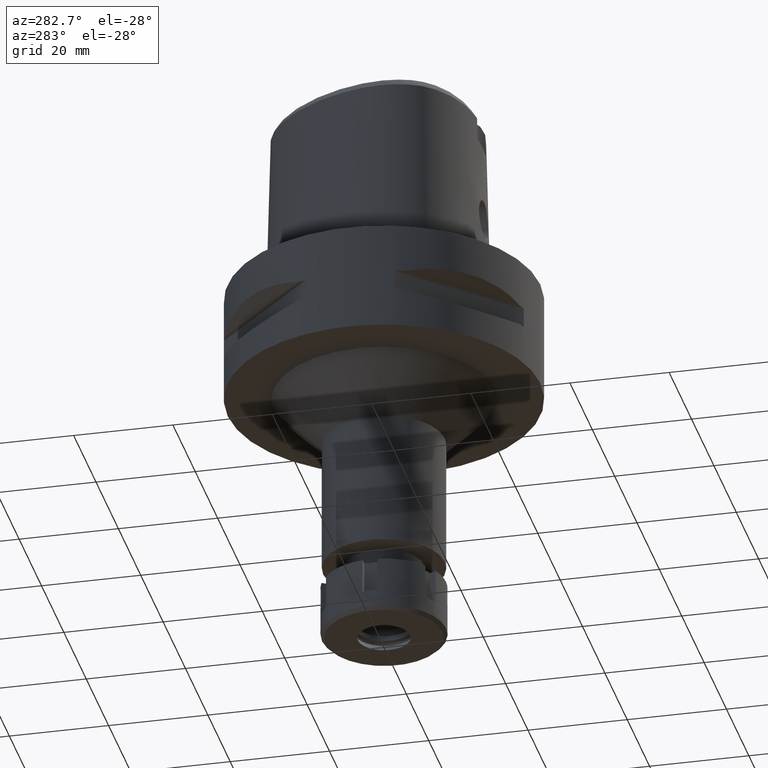
[diagram: clean part render]
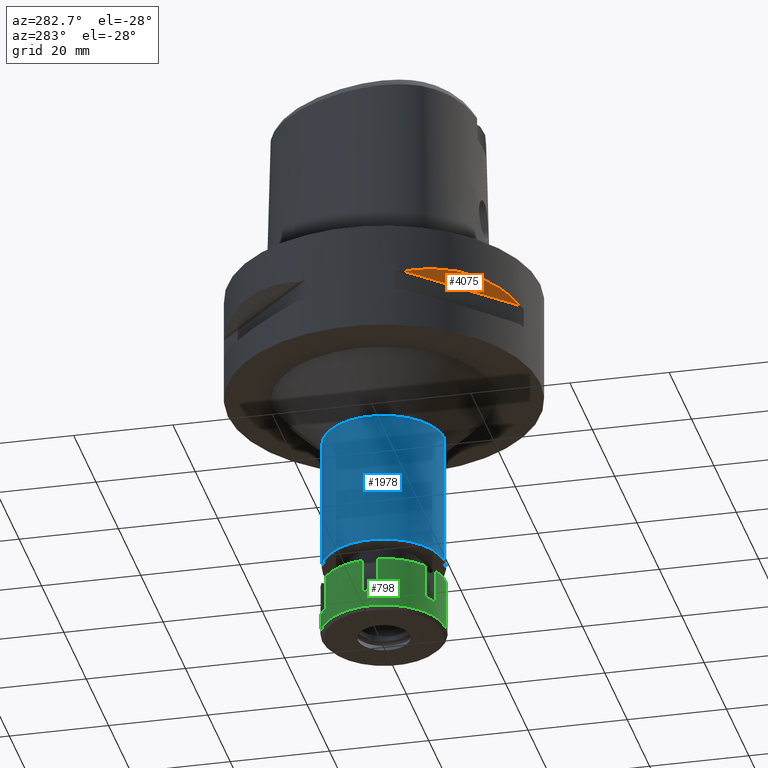
[diagram: same view with three faces highlighted in distinct colors, each labeled with its STEP entity id]
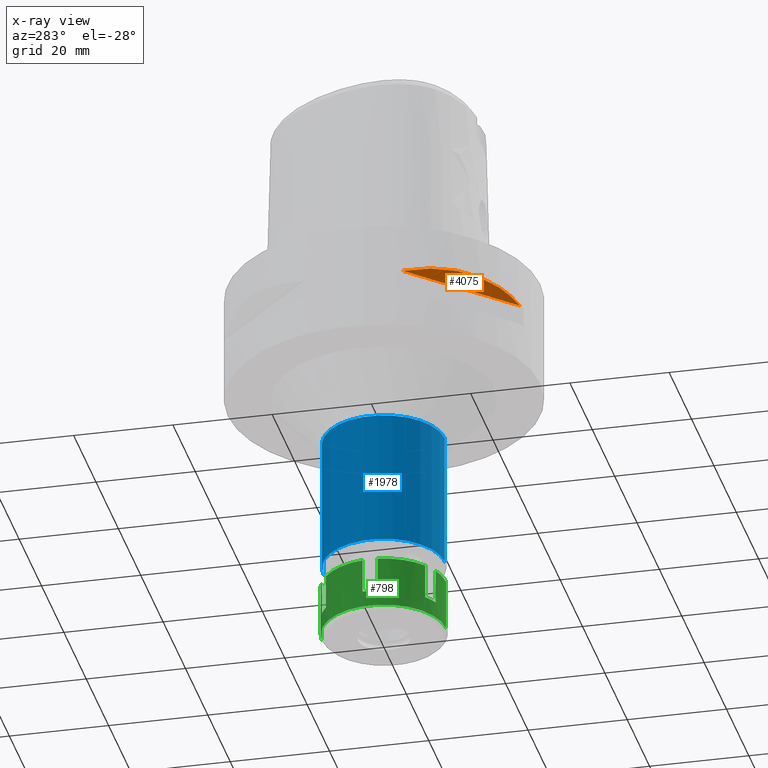
[diagram: x-ray of the same camera — body ghosted, the three highlighted faces saturated]
A machine part, auxiliary view with three faces highlighted in distinct colors.
The next image is the same camera in x-ray (body ghosted, the three faces saturated) — at least one of them is partly hidden behind the body in this view.
Their STEP definitions:

[orange] entity #4075 — the highlighted planar face has unit normal (0.3536, 0.3536, 0.866).
#60 = CARTESIAN_POINT ( 'NONE',  ( -29.71690375017999841, -10.44775724750000023, -9.949999999998999201 ) ) ;
#142 = CARTESIAN_POINT ( 'NONE',  ( -12.70097436179016981, -28.92472615206970588, -9.353533115217881999 ) ) ;
#264 = EDGE_LOOP ( 'NONE', ( #4134, #4243 ) ) ;
#494 = CARTESIAN_POINT ( 'NONE',  ( -10.44775724750000023, -29.71690375017999841, -9.949999999998999201 ) ) ;
#577 = CARTESIAN_POINT ( 'NONE',  ( -25.37277178164059777, -18.81455742168903456, -8.309746333109711003 ) ) ;
#913 = CARTESIAN_POINT ( 'NONE',  ( -23.90617837150508507, -20.64154884324739214, -8.160627831297874835 ) ) ;
#1047 = PLANE ( 'NONE',  #4182 ) ;
#1280 = B_SPLINE_CURVE_WITH_KNOTS ( 'NONE', 3,
 ( #60, #3502, #1411, #577, #913, #1356, #4278, #3800, #142, #494 ),
 .UNSPECIFIED., .F., .F.,
 ( 4, 2, 2, 2, 4 ),
 ( 0.0000000000000000000, 0.2499999999999999445, 0.4999999999999998890, 0.7499999999999997780, 1.000000000000000000 ),
 .UNSPECIFIED. ) ;
#1356 = CARTESIAN_POINT ( 'NONE',  ( -20.64154884324739214, -23.90617837150508507, -8.160613588476767433 ) ) ;
#1411 = CARTESIAN_POINT ( 'NONE',  ( -27.88214534467230976, -14.84422749205291581, -8.906206096480268286 ) ) ;
#1424 = DIRECTION ( 'NONE',  ( 0.3535533905933054277, 0.3535533905933054277, 0.8660254037844128394 ) ) ;
#1607 = DIRECTION ( 'NONE',  ( 0.7071067811865474617, -0.7071067811865474617, 0.0000000000000000000 ) ) ;
#1652 = EDGE_CURVE ( 'NONE', #5331, #3953, #1659, .T. ) ;
#1659 = LINE ( 'NONE', #3341, #3719 ) ;
#2012 = EDGE_CURVE ( 'NONE', #5331, #3953, #1280, .T. ) ;
#2560 = CARTESIAN_POINT ( 'NONE',  ( -10.44775724750000023, -29.71690375017999841, -9.949999999998999201 ) ) ;
#3139 = DIRECTION ( 'NONE',  ( 0.7071067811865475727, -0.7071067811865475727, 0.0000000000000000000 ) ) ;
#3341 = CARTESIAN_POINT ( 'NONE',  ( -29.71690375017999841, -10.44775724750000023, -9.949999999998999201 ) ) ;
#3502 = CARTESIAN_POINT ( 'NONE',  ( -28.92474506843119286, -12.70092055735351266, -9.353547358214942875 ) ) ;
#3516 = CARTESIAN_POINT ( 'NONE',  ( -8.838834764832000701, -37.12310601229000184, -7.583270440698999693 ) ) ;
#3719 = VECTOR ( 'NONE', #1607, 1000.000000000000114 ) ;
#3735 = CARTESIAN_POINT ( 'NONE',  ( -29.71690375017999841, -10.44775724750000023, -9.949999999998999201 ) ) ;
#3800 = CARTESIAN_POINT ( 'NONE',  ( -14.84430321572443034, -27.88210502987327288, -8.906184731984689407 ) ) ;
#3953 = VERTEX_POINT ( 'NONE', #2560 ) ;
#4075 = ADVANCED_FACE ( 'NONE', ( #4399 ), #1047, .F. ) ;
#4134 = ORIENTED_EDGE ( 'NONE', *, *, #1652, .T. ) ;
#4182 = AXIS2_PLACEMENT_3D ( 'NONE', #3516, #1424, #3139 ) ;
#4243 = ORIENTED_EDGE ( 'NONE', *, *, #2012, .F. ) ;
#4278 = CARTESIAN_POINT ( 'NONE',  ( -18.81462633026353970, -25.37272068403001413, -8.309724968614128571 ) ) ;
#4399 = FACE_OUTER_BOUND ( 'NONE', #264, .T. ) ;
#5331 = VERTEX_POINT ( 'NONE', #3735 ) ;

[blue] entity #1978 — the highlighted cylindrical surface (partial cylindrical patch) has radius 12.25 mm, axis along (0, 0, -1).
#283 = VECTOR ( 'NONE', #4674, 1000.000000000000000 ) ;
#284 = VECTOR ( 'NONE', #3192, 1000.000000000000000 ) ;
#355 = EDGE_CURVE ( 'NONE', #455, #819, #5093, .T. ) ;
#455 = VERTEX_POINT ( 'NONE', #2304 ) ;
#692 = CARTESIAN_POINT ( 'NONE',  ( 0.0000000000000000000, -12.25000000000000000, -59.50000000000000000 ) ) ;
#819 = VERTEX_POINT ( 'NONE', #3968 ) ;
#855 = VERTEX_POINT ( 'NONE', #692 ) ;
#887 = FACE_OUTER_BOUND ( 'NONE', #5010, .T. ) ;
#999 = DIRECTION ( 'NONE',  ( 0.0000000000000000000, 0.0000000000000000000, -1.000000000000000000 ) ) ;
#1051 = CARTESIAN_POINT ( 'NONE',  ( 0.0000000000000000000, -12.25000000000000000, -32.00000000000000000 ) ) ;
#1088 = EDGE_CURVE ( 'NONE', #819, #855, #1091, .T. ) ;
#1091 = CIRCLE ( 'NONE', #3634, 12.25000000000000000 ) ;
#1147 = EDGE_CURVE ( 'NONE', #5347, #855, #5296, .T. ) ;
#1672 = CARTESIAN_POINT ( 'NONE',  ( 0.0000000000000000000, -12.25000000000000000, -32.00000000000000000 ) ) ;
#1978 = ADVANCED_FACE ( 'NONE', ( #887 ), #4666, .T. ) ;
#2304 = CARTESIAN_POINT ( 'NONE',  ( 0.0000000000000000000, 12.25000000000000000, -32.00000000000000000 ) ) ;
#2465 = DIRECTION ( 'NONE',  ( 0.0000000000000000000, -1.000000000000000000, 0.0000000000000000000 ) ) ;
#2506 = CIRCLE ( 'NONE', #4261, 12.25000000000000000 ) ;
#2571 = DIRECTION ( 'NONE',  ( 0.0000000000000000000, 0.0000000000000000000, -1.000000000000000000 ) ) ;
#2573 = CARTESIAN_POINT ( 'NONE',  ( 0.0000000000000000000, 1.266897113717999920E-14, 3.449999999999999734 ) ) ;
#2952 = ORIENTED_EDGE ( 'NONE', *, *, #3328, .T. ) ;
#3114 = CARTESIAN_POINT ( 'NONE',  ( 0.0000000000000000000, 1.266897113717999920E-14, -59.50000000000000000 ) ) ;
#3192 = DIRECTION ( 'NONE',  ( 0.0000000000000000000, 0.0000000000000000000, -1.000000000000000000 ) ) ;
#3252 = ORIENTED_EDGE ( 'NONE', *, *, #355, .T. ) ;
#3328 = EDGE_CURVE ( 'NONE', #5347, #455, #2506, .T. ) ;
#3552 = ORIENTED_EDGE ( 'NONE', *, *, #1088, .T. ) ;
#3602 = ORIENTED_EDGE ( 'NONE', *, *, #1147, .F. ) ;
#3634 = AXIS2_PLACEMENT_3D ( 'NONE', #3114, #4347, #4877 ) ;
#3723 = AXIS2_PLACEMENT_3D ( 'NONE', #2573, #999, #3831 ) ;
#3831 = DIRECTION ( 'NONE',  ( 0.0000000000000000000, -1.000000000000000000, 0.0000000000000000000 ) ) ;
#3968 = CARTESIAN_POINT ( 'NONE',  ( 0.0000000000000000000, 12.25000000000000000, -59.50000000000000000 ) ) ;
#4261 = AXIS2_PLACEMENT_3D ( 'NONE', #4574, #2571, #2465 ) ;
#4347 = DIRECTION ( 'NONE',  ( 0.0000000000000000000, 0.0000000000000000000, 1.000000000000000000 ) ) ;
#4574 = CARTESIAN_POINT ( 'NONE',  ( 0.0000000000000000000, 0.0000000000000000000, -32.00000000000000000 ) ) ;
#4666 = CYLINDRICAL_SURFACE ( 'NONE', #3723, 12.25000000000000000 ) ;
#4674 = DIRECTION ( 'NONE',  ( 0.0000000000000000000, 0.0000000000000000000, -1.000000000000000000 ) ) ;
#4706 = CARTESIAN_POINT ( 'NONE',  ( 0.0000000000000000000, 12.25000000000000000, -32.00000000000000000 ) ) ;
#4877 = DIRECTION ( 'NONE',  ( 0.0000000000000000000, 1.000000000000000000, 0.0000000000000000000 ) ) ;
#5010 = EDGE_LOOP ( 'NONE', ( #3552, #3602, #2952, #3252 ) ) ;
#5093 = LINE ( 'NONE', #4706, #283 ) ;
#5296 = LINE ( 'NONE', #1051, #284 ) ;
#5347 = VERTEX_POINT ( 'NONE', #1672 ) ;

[green] entity #798 — the highlighted cylindrical surface (partial cylindrical patch) has radius 12.5 mm, axis along (0, 0, -1).
#11 = ORIENTED_EDGE ( 'NONE', *, *, #5455, .T. ) ;
#85 = CARTESIAN_POINT ( 'NONE',  ( 0.0000000000000000000, 0.0000000000000000000, 0.0000000000000000000 ) ) ;
#94 = EDGE_CURVE ( 'NONE', #3745, #2056, #600, .T. ) ;
#102 = CARTESIAN_POINT ( 'NONE',  ( 0.0000000000000000000, 0.0000000000000000000, -7.000000000000000000 ) ) ;
#111 = CARTESIAN_POINT ( 'NONE',  ( -7.503874928671999456, -9.997092630101999333, 0.0000000000000000000 ) ) ;
#202 = ORIENTED_EDGE ( 'NONE', *, *, #1484, .F. ) ;
#218 = CARTESIAN_POINT ( 'NONE',  ( -4.905798717319999724, -11.49709263010000093, 0.0000000000000000000 ) ) ;
#252 = DIRECTION ( 'NONE',  ( 0.0000000000000000000, 0.0000000000000000000, 1.000000000000000000 ) ) ;
#286 = VECTOR ( 'NONE', #4939, 1000.000000000000000 ) ;
#292 = ORIENTED_EDGE ( 'NONE', *, *, #4915, .F. ) ;
#390 = CARTESIAN_POINT ( 'NONE',  ( -4.905798717319999724, -11.49709263010000093, -7.000000000000000000 ) ) ;
#398 = LINE ( 'NONE', #2842, #3817 ) ;
#433 = DIRECTION ( 'NONE',  ( 0.0000000000000000000, 0.0000000000000000000, -1.000000000000000000 ) ) ;
#440 = DIRECTION ( 'NONE',  ( 0.0000000000000000000, 0.0000000000000000000, -1.000000000000000000 ) ) ;
#448 = DIRECTION ( 'NONE',  ( -0.9927738916792689938, -0.1199999999999962208, 0.0000000000000000000 ) ) ;
#534 = DIRECTION ( 'NONE',  ( 0.0000000000000000000, 0.0000000000000000000, -1.000000000000000000 ) ) ;
#597 = DIRECTION ( 'NONE',  ( -0.9927738916792689938, 0.1199999999999962208, 0.0000000000000000000 ) ) ;
#600 = LINE ( 'NONE', #2228, #4507 ) ;
#645 = VERTEX_POINT ( 'NONE', #4828 ) ;
#648 = VERTEX_POINT ( 'NONE', #1054 ) ;
#709 = ORIENTED_EDGE ( 'NONE', *, *, #94, .F. ) ;
#710 = CARTESIAN_POINT ( 'NONE',  ( 0.0000000000000000000, -12.50000000000000000, 0.0000000000000000000 ) ) ;
#798 = ADVANCED_FACE ( 'NONE', ( #2958 ), #3420, .T. ) ;
#827 = VERTEX_POINT ( 'NONE', #3586 ) ;
#902 = DIRECTION ( 'NONE',  ( 0.0000000000000000000, 0.0000000000000000000, -1.000000000000000000 ) ) ;
#907 = AXIS2_PLACEMENT_3D ( 'NONE', #4431, #534, #597 ) ;
#927 = ORIENTED_EDGE ( 'NONE', *, *, #1316, .F. ) ;
#973 = DIRECTION ( 'NONE',  ( 0.0000000000000000000, 0.0000000000000000000, -1.000000000000000000 ) ) ;
#1041 = ORIENTED_EDGE ( 'NONE', *, *, #5195, .T. ) ;
#1054 = CARTESIAN_POINT ( 'NONE',  ( 0.0000000000000000000, 12.50000000000000000, 0.0000000000000000000 ) ) ;
#1219 = EDGE_CURVE ( 'NONE', #4184, #1422, #5398, .T. ) ;
#1290 = AXIS2_PLACEMENT_3D ( 'NONE', #4249, #2091, #2153 ) ;
#1302 = DIRECTION ( 'NONE',  ( 0.0000000000000000000, -1.000000000000000000, 0.0000000000000000000 ) ) ;
#1316 = EDGE_CURVE ( 'NONE', #2749, #2977, #4539, .T. ) ;
#1325 = CARTESIAN_POINT ( 'NONE',  ( 0.0000000000000000000, 0.0000000000000000000, 0.0000000000000000000 ) ) ;
#1387 = DIRECTION ( 'NONE',  ( -0.3924638973854109314, 0.9197674104082257385, 0.0000000000000000000 ) ) ;
#1422 = VERTEX_POINT ( 'NONE', #5236 ) ;
#1484 = EDGE_CURVE ( 'NONE', #2435, #4881, #3750, .T. ) ;
#1614 = CARTESIAN_POINT ( 'NONE',  ( -4.905798717318000435, 11.49709263010000093, 0.0000000000000000000 ) ) ;
#1723 = VERTEX_POINT ( 'NONE', #2089 ) ;
#1737 = EDGE_CURVE ( 'NONE', #4184, #4470, #5463, .T. ) ;
#1749 = CARTESIAN_POINT ( 'NONE',  ( -12.40967364599000078, -1.500000000000000000, -7.000000000000000000 ) ) ;
#1769 = LINE ( 'NONE', #4673, #4541 ) ;
#1776 = EDGE_CURVE ( 'NONE', #827, #648, #4876, .T. ) ;
#1806 = VECTOR ( 'NONE', #3294, 1000.000000000000000 ) ;
#1866 = ORIENTED_EDGE ( 'NONE', *, *, #4847, .T. ) ;
#1913 = ORIENTED_EDGE ( 'NONE', *, *, #1776, .T. ) ;
#1935 = VERTEX_POINT ( 'NONE', #111 ) ;
#1962 = ORIENTED_EDGE ( 'NONE', *, *, #3636, .T. ) ;
#1969 = CARTESIAN_POINT ( 'NONE',  ( -12.40967364599000078, 1.500000000000000000, 0.0000000000000000000 ) ) ;
#2056 = VERTEX_POINT ( 'NONE', #218 ) ;
#2089 = CARTESIAN_POINT ( 'NONE',  ( -4.905798717318000435, 11.49709263010000093, -7.000000000000000000 ) ) ;
#2091 = DIRECTION ( 'NONE',  ( 0.0000000000000000000, 0.0000000000000000000, -1.000000000000000000 ) ) ;
#2153 = DIRECTION ( 'NONE',  ( -0.6003099942937818456, -0.7997674104081758939, 0.0000000000000000000 ) ) ;
#2228 = CARTESIAN_POINT ( 'NONE',  ( -4.905798717319999724, -11.49709263010000093, -7.000000000000000000 ) ) ;
#2254 = EDGE_CURVE ( 'NONE', #1935, #645, #398, .T. ) ;
#2257 = AXIS2_PLACEMENT_3D ( 'NONE', #2365, #252, #4529 ) ;
#2340 = CIRCLE ( 'NONE', #5411, 12.49999999999999822 ) ;
#2342 = ORIENTED_EDGE ( 'NONE', *, *, #2254, .F. ) ;
#2353 = AXIS2_PLACEMENT_3D ( 'NONE', #5085, #3835, #1302 ) ;
#2354 = DIRECTION ( 'NONE',  ( 0.0000000000000000000, 0.0000000000000000000, -1.000000000000000000 ) ) ;
#2365 = CARTESIAN_POINT ( 'NONE',  ( 0.0000000000000000000, 0.0000000000000000000, -10.30000000000000071 ) ) ;
#2423 = AXIS2_PLACEMENT_3D ( 'NONE', #3798, #4964, #3314 ) ;
#2430 = AXIS2_PLACEMENT_3D ( 'NONE', #102, #902, #448 ) ;
#2435 = VERTEX_POINT ( 'NONE', #1749 ) ;
#2458 = DIRECTION ( 'NONE',  ( 0.0000000000000000000, 0.0000000000000000000, -1.000000000000000000 ) ) ;
#2471 = CARTESIAN_POINT ( 'NONE',  ( 0.0000000000000000000, -12.50000000000000000, -10.30000000000000071 ) ) ;
#2523 = CARTESIAN_POINT ( 'NONE',  ( 0.0000000000000000000, -12.50000000000000000, 0.0000000000000000000 ) ) ;
#2529 = CARTESIAN_POINT ( 'NONE',  ( 0.0000000000000000000, 12.50000000000000000, 0.0000000000000000000 ) ) ;
#2532 = EDGE_LOOP ( 'NONE', ( #3358, #1913, #1866, #4498, #927, #1041, #709, #1962, #2342, #2891, #202, #11, #3385, #2567, #292, #4216 ) ) ;
#2555 = LINE ( 'NONE', #2529, #4021 ) ;
#2567 = ORIENTED_EDGE ( 'NONE', *, *, #1219, .T. ) ;
#2616 = DIRECTION ( 'NONE',  ( 0.0000000000000000000, 0.0000000000000000000, 1.000000000000000000 ) ) ;
#2749 = VERTEX_POINT ( 'NONE', #2523 ) ;
#2763 = CARTESIAN_POINT ( 'NONE',  ( 0.0000000000000000000, 12.50000000000000000, -10.30000000000000071 ) ) ;
#2842 = CARTESIAN_POINT ( 'NONE',  ( -7.503874928671999456, -9.997092630101999333, 0.0000000000000000000 ) ) ;
#2891 = ORIENTED_EDGE ( 'NONE', *, *, #5208, .T. ) ;
#2926 = CARTESIAN_POINT ( 'NONE',  ( -7.503874928671999456, 9.997092630101999333, -7.000000000000000000 ) ) ;
#2958 = FACE_OUTER_BOUND ( 'NONE', #2532, .T. ) ;
#2968 = CIRCLE ( 'NONE', #1290, 12.50000000000000178 ) ;
#2977 = VERTEX_POINT ( 'NONE', #2471 ) ;
#3008 = DIRECTION ( 'NONE',  ( 0.0000000000000000000, -1.000000000000000000, 0.0000000000000000000 ) ) ;
#3116 = AXIS2_PLACEMENT_3D ( 'NONE', #85, #5138, #1387 ) ;
#3200 = CARTESIAN_POINT ( 'NONE',  ( 0.0000000000000000000, 0.0000000000000000000, -7.000000000000000000 ) ) ;
#3249 = DIRECTION ( 'NONE',  ( 0.0000000000000000000, 0.0000000000000000000, -1.000000000000000000 ) ) ;
#3280 = VERTEX_POINT ( 'NONE', #2926 ) ;
#3294 = DIRECTION ( 'NONE',  ( 0.0000000000000000000, 0.0000000000000000000, -1.000000000000000000 ) ) ;
#3303 = EDGE_CURVE ( 'NONE', #3280, #1723, #3819, .T. ) ;
#3314 = DIRECTION ( 'NONE',  ( -0.6003099942937818456, 0.7997674104081758939, 0.0000000000000000000 ) ) ;
#3358 = ORIENTED_EDGE ( 'NONE', *, *, #4236, .F. ) ;
#3385 = ORIENTED_EDGE ( 'NONE', *, *, #1737, .F. ) ;
#3404 = CARTESIAN_POINT ( 'NONE',  ( -12.40967364599000078, -1.500000000000000000, 0.0000000000000000000 ) ) ;
#3420 = CYLINDRICAL_SURFACE ( 'NONE', #4694, 12.50000000000000000 ) ;
#3586 = CARTESIAN_POINT ( 'NONE',  ( -4.905798717318000435, 11.49709263010000093, 0.0000000000000000000 ) ) ;
#3609 = VERTEX_POINT ( 'NONE', #2763 ) ;
#3636 = EDGE_CURVE ( 'NONE', #3745, #645, #2340, .T. ) ;
#3745 = VERTEX_POINT ( 'NONE', #390 ) ;
#3750 = LINE ( 'NONE', #4603, #286 ) ;
#3751 = CIRCLE ( 'NONE', #2430, 12.50000000000000000 ) ;
#3798 = CARTESIAN_POINT ( 'NONE',  ( 0.0000000000000000000, 0.0000000000000000000, -7.000000000000000000 ) ) ;
#3817 = VECTOR ( 'NONE', #2458, 1000.000000000000000 ) ;
#3819 = CIRCLE ( 'NONE', #2423, 12.50000000000000178 ) ;
#3835 = DIRECTION ( 'NONE',  ( 0.0000000000000000000, 0.0000000000000000000, -1.000000000000000000 ) ) ;
#4021 = VECTOR ( 'NONE', #440, 1000.000000000000000 ) ;
#4184 = VERTEX_POINT ( 'NONE', #1969 ) ;
#4216 = ORIENTED_EDGE ( 'NONE', *, *, #3303, .T. ) ;
#4221 = CARTESIAN_POINT ( 'NONE',  ( -12.40967364599000078, 1.500000000000000000, 0.0000000000000000000 ) ) ;
#4236 = EDGE_CURVE ( 'NONE', #827, #1723, #5387, .T. ) ;
#4249 = CARTESIAN_POINT ( 'NONE',  ( 0.0000000000000000000, 0.0000000000000000000, 0.0000000000000000000 ) ) ;
#4323 = DIRECTION ( 'NONE',  ( 0.0000000000000000000, 0.0000000000000000000, 1.000000000000000000 ) ) ;
#4431 = CARTESIAN_POINT ( 'NONE',  ( 0.0000000000000000000, 0.0000000000000000000, 0.0000000000000000000 ) ) ;
#4470 = VERTEX_POINT ( 'NONE', #5257 ) ;
#4498 = ORIENTED_EDGE ( 'NONE', *, *, #4958, .T. ) ;
#4507 = VECTOR ( 'NONE', #4323, 1000.000000000000000 ) ;
#4529 = DIRECTION ( 'NONE',  ( 0.0000000000000000000, 1.000000000000000000, 0.0000000000000000000 ) ) ;
#4539 = LINE ( 'NONE', #710, #5047 ) ;
#4541 = VECTOR ( 'NONE', #2616, 1000.000000000000000 ) ;
#4603 = CARTESIAN_POINT ( 'NONE',  ( -12.40967364599000078, -1.500000000000000000, -7.000000000000000000 ) ) ;
#4673 = CARTESIAN_POINT ( 'NONE',  ( -7.503874928671999456, 9.997092630101999333, -7.000000000000000000 ) ) ;
#4694 = AXIS2_PLACEMENT_3D ( 'NONE', #1325, #973, #3008 ) ;
#4728 = CIRCLE ( 'NONE', #2353, 12.50000000000000000 ) ;
#4734 = CIRCLE ( 'NONE', #2257, 12.50000000000000000 ) ;
#4828 = CARTESIAN_POINT ( 'NONE',  ( -7.503874928671999456, -9.997092630101999333, -7.000000000000000000 ) ) ;
#4830 = DIRECTION ( 'NONE',  ( -0.3924638973856165447, -0.9197674104081380309, 0.0000000000000000000 ) ) ;
#4847 = EDGE_CURVE ( 'NONE', #648, #3609, #2555, .T. ) ;
#4876 = CIRCLE ( 'NONE', #3116, 12.50000000000000355 ) ;
#4881 = VERTEX_POINT ( 'NONE', #3404 ) ;
#4915 = EDGE_CURVE ( 'NONE', #3280, #1422, #1769, .T. ) ;
#4939 = DIRECTION ( 'NONE',  ( 0.0000000000000000000, 0.0000000000000000000, 1.000000000000000000 ) ) ;
#4958 = EDGE_CURVE ( 'NONE', #3609, #2977, #4734, .T. ) ;
#4964 = DIRECTION ( 'NONE',  ( 0.0000000000000000000, 0.0000000000000000000, -1.000000000000000000 ) ) ;
#5047 = VECTOR ( 'NONE', #3249, 1000.000000000000000 ) ;
#5085 = CARTESIAN_POINT ( 'NONE',  ( 0.0000000000000000000, 0.0000000000000000000, 0.0000000000000000000 ) ) ;
#5138 = DIRECTION ( 'NONE',  ( 0.0000000000000000000, 0.0000000000000000000, -1.000000000000000000 ) ) ;
#5145 = VECTOR ( 'NONE', #433, 1000.000000000000000 ) ;
#5195 = EDGE_CURVE ( 'NONE', #2749, #2056, #4728, .T. ) ;
#5208 = EDGE_CURVE ( 'NONE', #1935, #4881, #2968, .T. ) ;
#5236 = CARTESIAN_POINT ( 'NONE',  ( -7.503874928671999456, 9.997092630101999333, 0.0000000000000000000 ) ) ;
#5257 = CARTESIAN_POINT ( 'NONE',  ( -12.40967364599000078, 1.500000000000000000, -7.000000000000000000 ) ) ;
#5387 = LINE ( 'NONE', #1614, #1806 ) ;
#5398 = CIRCLE ( 'NONE', #907, 12.50000000000000000 ) ;
#5411 = AXIS2_PLACEMENT_3D ( 'NONE', #3200, #2354, #4830 ) ;
#5455 = EDGE_CURVE ( 'NONE', #2435, #4470, #3751, .T. ) ;
#5463 = LINE ( 'NONE', #4221, #5145 ) ;